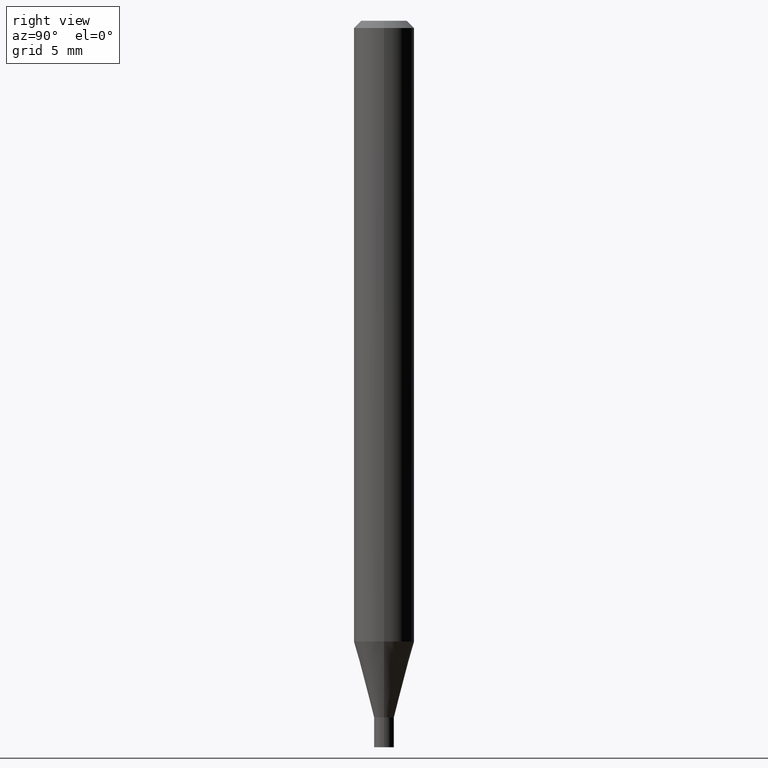
[diagram: clean part render]
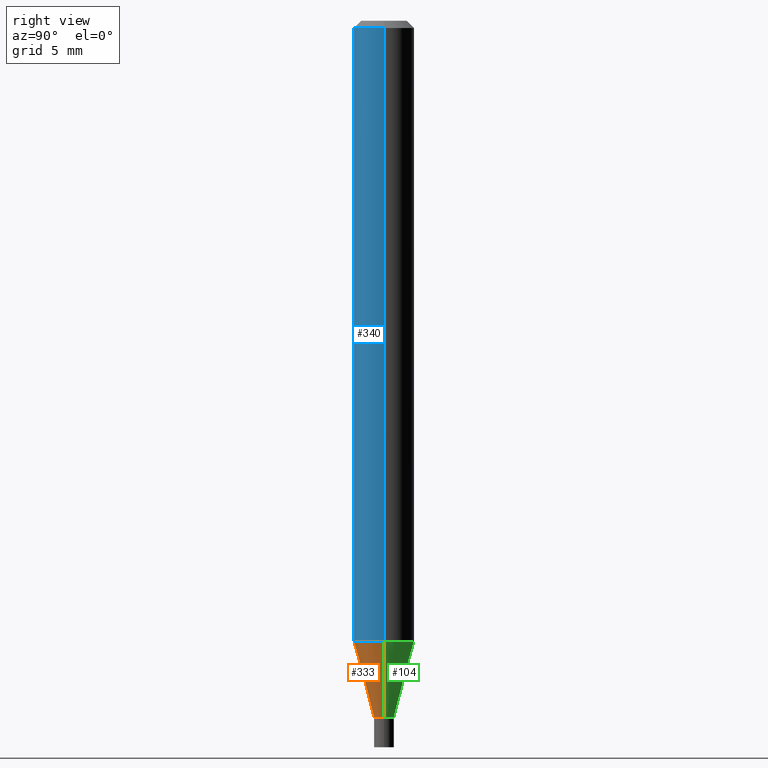
[diagram: same view with three faces highlighted in distinct colors, each labeled with its STEP entity id]
A machine part, right view with three faces highlighted in distinct colors.
Their STEP definitions:

[orange] entity #333 — the highlighted conical surface has half-angle 15 deg.
#8 = CARTESIAN_POINT ( 'NONE',  ( -0.02049999999999965045, -4.876834645095047443E-15, -1.438500000000000334 ) ) ;
#31 = CARTESIAN_POINT ( 'NONE',  ( 3.134489096710992229E-29, -4.475219704415731184E-15, -1.281753866082106397 ) ) ;
#36 = AXIS2_PLACEMENT_3D ( 'NONE', #369, #266, #300 ) ;
#45 = VERTEX_POINT ( 'NONE', #426 ) ;
#47 = LINE ( 'NONE', #8, #190 ) ;
#50 = ORIENTED_EDGE ( 'NONE', *, *, #81, .F. ) ;
#58 = VERTEX_POINT ( 'NONE', #362 ) ;
#81 = EDGE_CURVE ( 'NONE', #349, #164, #130, .T. ) ;
#82 = DIRECTION ( 'NONE',  ( -2.445468806185136597E-29, 3.491481338843145583E-15, 1.000000000000000000 ) ) ;
#84 = DIRECTION ( 'NONE',  ( 1.000000000000000000, -6.982962677686286432E-15, 0.000000000000000000 ) ) ;
#105 = VECTOR ( 'NONE', #446, 39.37007874015747433 ) ;
#128 = CARTESIAN_POINT ( 'NONE',  ( 0.06250000000000000000, -4.911654871771122854E-15, -1.281753866082106397 ) ) ;
#130 = CIRCLE ( 'NONE', #382, 0.06250000000000000000 ) ;
#132 = CARTESIAN_POINT ( 'NONE',  ( 0.02049999999999965045, -5.165646640818431797E-15, -1.438500000000000334 ) ) ;
#164 = VERTEX_POINT ( 'NONE', #128 ) ;
#171 = EDGE_LOOP ( 'NONE', ( #383, #342, #212, #50 ) ) ;
#186 = DIRECTION ( 'NONE',  ( -2.445468806185136597E-29, 3.491481338843145583E-15, 1.000000000000000000 ) ) ;
#190 = VECTOR ( 'NONE', #336, 39.37007874015747433 ) ;
#212 = ORIENTED_EDGE ( 'NONE', *, *, #305, .T. ) ;
#224 = DIRECTION ( 'NONE',  ( 1.000000000000000000, -6.982962677686262766E-15, 0.000000000000000000 ) ) ;
#263 = CARTESIAN_POINT ( 'NONE',  ( 3.517806877697320021E-29, -5.022495905925865349E-15, -1.438500000000000334 ) ) ;
#266 = DIRECTION ( 'NONE',  ( -2.445468806185136597E-29, 3.491481338843145583E-15, 1.000000000000000000 ) ) ;
#276 = CIRCLE ( 'NONE', #346, 0.02049999999999965045 ) ;
#294 = CARTESIAN_POINT ( 'NONE',  ( -0.06250000000000000000, -4.031130494565667779E-15, -1.281753866082106397 ) ) ;
#300 = DIRECTION ( 'NONE',  ( 1.000000000000000000, -6.982962677686286432E-15, 0.000000000000000000 ) ) ;
#305 = EDGE_CURVE ( 'NONE', #58, #164, #309, .T. ) ;
#309 = LINE ( 'NONE', #132, #105 ) ;
#327 = EDGE_CURVE ( 'NONE', #45, #58, #276, .T. ) ;
#328 = EDGE_CURVE ( 'NONE', #45, #349, #47, .T. ) ;
#333 = ADVANCED_FACE ( 'NONE', ( #440 ), #414, .T. ) ;
#336 = DIRECTION ( 'NONE',  ( -0.2588190451025213501, 5.211531920934551042E-15, 0.9659258262890682012 ) ) ;
#342 = ORIENTED_EDGE ( 'NONE', *, *, #327, .T. ) ;
#346 = AXIS2_PLACEMENT_3D ( 'NONE', #263, #82, #84 ) ;
#349 = VERTEX_POINT ( 'NONE', #294 ) ;
#362 = CARTESIAN_POINT ( 'NONE',  ( 0.02049999999999965045, -5.165646640818431797E-15, -1.438500000000000334 ) ) ;
#369 = CARTESIAN_POINT ( 'NONE',  ( 3.517806877697320021E-29, -5.022495905925865349E-15, -1.438500000000000334 ) ) ;
#382 = AXIS2_PLACEMENT_3D ( 'NONE', #31, #186, #224 ) ;
#383 = ORIENTED_EDGE ( 'NONE', *, *, #328, .F. ) ;
#414 = CONICAL_SURFACE ( 'NONE', #36, 0.02049999999999965045, 0.2617993877991500740 ) ;
#426 = CARTESIAN_POINT ( 'NONE',  ( -0.02049999999999965045, -4.453982569830358005E-15, -1.438500000000000334 ) ) ;
#440 = FACE_OUTER_BOUND ( 'NONE', #171, .T. ) ;
#446 = DIRECTION ( 'NONE',  ( 0.2588190451025213501, 1.565188264969621968E-15, 0.9659258262890682012 ) ) ;

[blue] entity #340 — the highlighted cylindrical surface (edge-blend (fillet) strip) has radius 1.5875 mm, axis along (-0, 0, 1).
#5 = EDGE_CURVE ( 'NONE', #164, #210, #285, .T. ) ;
#6 = DIRECTION ( 'NONE',  ( 1.000000000000000000, -6.982962677686266711E-15, 4.876176775795935793E-29 ) ) ;
#7 = CARTESIAN_POINT ( 'NONE',  ( 0.06250000000000000000, -4.888073874380388472E-16, -0.01499999999999999944 ) ) ;
#13 = CARTESIAN_POINT ( 'NONE',  ( 0.000000000000000000, 0.000000000000000000, 0.000000000000000000 ) ) ;
#14 = VECTOR ( 'NONE', #216, 39.37007874015748143 ) ;
#18 = VERTEX_POINT ( 'NONE', #46 ) ;
#20 = ORIENTED_EDGE ( 'NONE', *, *, #409, .F. ) ;
#23 = ORIENTED_EDGE ( 'NONE', *, *, #368, .F. ) ;
#31 = CARTESIAN_POINT ( 'NONE',  ( 3.134489096710992229E-29, -4.475219704415731184E-15, -1.281753866082106397 ) ) ;
#42 = CYLINDRICAL_SURFACE ( 'NONE', #136, 0.06250000000000000000 ) ;
#46 = CARTESIAN_POINT ( 'NONE',  ( -0.06250000000000000000, -1.819706752399126713E-15, -0.01499999999999999944 ) ) ;
#81 = EDGE_CURVE ( 'NONE', #349, #164, #130, .T. ) ;
#87 = DIRECTION ( 'NONE',  ( -2.445468806185136597E-29, 3.491481338843145583E-15, 1.000000000000000000 ) ) ;
#128 = CARTESIAN_POINT ( 'NONE',  ( 0.06250000000000000000, -4.911654871771122854E-15, -1.281753866082106397 ) ) ;
#130 = CIRCLE ( 'NONE', #382, 0.06250000000000000000 ) ;
#136 = AXIS2_PLACEMENT_3D ( 'NONE', #13, #87, #6 ) ;
#146 = ORIENTED_EDGE ( 'NONE', *, *, #5, .T. ) ;
#164 = VERTEX_POINT ( 'NONE', #128 ) ;
#184 = CARTESIAN_POINT ( 'NONE',  ( -0.06250000000000000000, 4.440892098500626162E-16, -3.074334431409316114E-30 ) ) ;
#186 = DIRECTION ( 'NONE',  ( -2.445468806185136597E-29, 3.491481338843145583E-15, 1.000000000000000000 ) ) ;
#196 = CIRCLE ( 'NONE', #209, 0.06250000000000000000 ) ;
#209 = AXIS2_PLACEMENT_3D ( 'NONE', #429, #435, #352 ) ;
#210 = VERTEX_POINT ( 'NONE', #7 ) ;
#216 = DIRECTION ( 'NONE',  ( -2.445468806185136877E-29, 3.491481338843145188E-15, 1.000000000000000000 ) ) ;
#222 = LINE ( 'NONE', #184, #14 ) ;
#224 = DIRECTION ( 'NONE',  ( 1.000000000000000000, -6.982962677686262766E-15, 0.000000000000000000 ) ) ;
#230 = EDGE_LOOP ( 'NONE', ( #20, #351, #146, #23 ) ) ;
#285 = LINE ( 'NONE', #392, #330 ) ;
#294 = CARTESIAN_POINT ( 'NONE',  ( -0.06250000000000000000, -4.031130494565667779E-15, -1.281753866082106397 ) ) ;
#330 = VECTOR ( 'NONE', #427, 39.37007874015748143 ) ;
#340 = ADVANCED_FACE ( 'NONE', ( #403 ), #42, .T. ) ;
#349 = VERTEX_POINT ( 'NONE', #294 ) ;
#351 = ORIENTED_EDGE ( 'NONE', *, *, #81, .T. ) ;
#352 = DIRECTION ( 'NONE',  ( 1.000000000000000000, -6.982962677686266711E-15, 0.000000000000000000 ) ) ;
#368 = EDGE_CURVE ( 'NONE', #18, #210, #196, .T. ) ;
#382 = AXIS2_PLACEMENT_3D ( 'NONE', #31, #186, #224 ) ;
#392 = CARTESIAN_POINT ( 'NONE',  ( 0.06250000000000000000, -4.364351673553916694E-16, 3.047610484872459871E-30 ) ) ;
#403 = FACE_OUTER_BOUND ( 'NONE', #230, .T. ) ;
#409 = EDGE_CURVE ( 'NONE', #349, #18, #222, .T. ) ;
#427 = DIRECTION ( 'NONE',  ( -2.445468806185136877E-29, 3.491481338843145188E-15, 1.000000000000000000 ) ) ;
#429 = CARTESIAN_POINT ( 'NONE',  ( 3.668203209277705088E-31, -5.237222008264718399E-17, -0.01499999999999999944 ) ) ;
#435 = DIRECTION ( 'NONE',  ( -2.445468806185136597E-29, 3.491481338843145583E-15, 1.000000000000000000 ) ) ;

[green] entity #104 — the highlighted conical surface has half-angle 15 deg.
#8 = CARTESIAN_POINT ( 'NONE',  ( -0.02049999999999965045, -4.876834645095047443E-15, -1.438500000000000334 ) ) ;
#34 = CARTESIAN_POINT ( 'NONE',  ( 3.517806877697320021E-29, -5.022495905925865349E-15, -1.438500000000000334 ) ) ;
#45 = VERTEX_POINT ( 'NONE', #426 ) ;
#47 = LINE ( 'NONE', #8, #190 ) ;
#48 = AXIS2_PLACEMENT_3D ( 'NONE', #83, #261, #194 ) ;
#51 = DIRECTION ( 'NONE',  ( 1.000000000000000000, -6.982962677686286432E-15, 0.000000000000000000 ) ) ;
#53 = EDGE_LOOP ( 'NONE', ( #63, #423, #56, #275 ) ) ;
#56 = ORIENTED_EDGE ( 'NONE', *, *, #154, .F. ) ;
#58 = VERTEX_POINT ( 'NONE', #362 ) ;
#63 = ORIENTED_EDGE ( 'NONE', *, *, #315, .T. ) ;
#83 = CARTESIAN_POINT ( 'NONE',  ( 3.134489096710992229E-29, -4.475219704415731184E-15, -1.281753866082106397 ) ) ;
#88 = AXIS2_PLACEMENT_3D ( 'NONE', #410, #274, #51 ) ;
#104 = ADVANCED_FACE ( 'NONE', ( #162 ), #182, .T. ) ;
#105 = VECTOR ( 'NONE', #446, 39.37007874015747433 ) ;
#128 = CARTESIAN_POINT ( 'NONE',  ( 0.06250000000000000000, -4.911654871771122854E-15, -1.281753866082106397 ) ) ;
#132 = CARTESIAN_POINT ( 'NONE',  ( 0.02049999999999965045, -5.165646640818431797E-15, -1.438500000000000334 ) ) ;
#154 = EDGE_CURVE ( 'NONE', #164, #349, #431, .T. ) ;
#162 = FACE_OUTER_BOUND ( 'NONE', #53, .T. ) ;
#164 = VERTEX_POINT ( 'NONE', #128 ) ;
#182 = CONICAL_SURFACE ( 'NONE', #374, 0.02049999999999965045, 0.2617993877991500740 ) ;
#190 = VECTOR ( 'NONE', #336, 39.37007874015747433 ) ;
#194 = DIRECTION ( 'NONE',  ( 1.000000000000000000, -6.982962677686262766E-15, 0.000000000000000000 ) ) ;
#261 = DIRECTION ( 'NONE',  ( -2.445468806185136597E-29, 3.491481338843145583E-15, 1.000000000000000000 ) ) ;
#274 = DIRECTION ( 'NONE',  ( -2.445468806185136597E-29, 3.491481338843145583E-15, 1.000000000000000000 ) ) ;
#275 = ORIENTED_EDGE ( 'NONE', *, *, #305, .F. ) ;
#292 = DIRECTION ( 'NONE',  ( 1.000000000000000000, -6.982962677686286432E-15, 0.000000000000000000 ) ) ;
#294 = CARTESIAN_POINT ( 'NONE',  ( -0.06250000000000000000, -4.031130494565667779E-15, -1.281753866082106397 ) ) ;
#305 = EDGE_CURVE ( 'NONE', #58, #164, #309, .T. ) ;
#309 = LINE ( 'NONE', #132, #105 ) ;
#315 = EDGE_CURVE ( 'NONE', #58, #45, #406, .T. ) ;
#328 = EDGE_CURVE ( 'NONE', #45, #349, #47, .T. ) ;
#336 = DIRECTION ( 'NONE',  ( -0.2588190451025213501, 5.211531920934551042E-15, 0.9659258262890682012 ) ) ;
#349 = VERTEX_POINT ( 'NONE', #294 ) ;
#362 = CARTESIAN_POINT ( 'NONE',  ( 0.02049999999999965045, -5.165646640818431797E-15, -1.438500000000000334 ) ) ;
#374 = AXIS2_PLACEMENT_3D ( 'NONE', #34, #439, #292 ) ;
#406 = CIRCLE ( 'NONE', #88, 0.02049999999999965045 ) ;
#410 = CARTESIAN_POINT ( 'NONE',  ( 3.517806877697320021E-29, -5.022495905925865349E-15, -1.438500000000000334 ) ) ;
#423 = ORIENTED_EDGE ( 'NONE', *, *, #328, .T. ) ;
#426 = CARTESIAN_POINT ( 'NONE',  ( -0.02049999999999965045, -4.453982569830358005E-15, -1.438500000000000334 ) ) ;
#431 = CIRCLE ( 'NONE', #48, 0.06250000000000000000 ) ;
#439 = DIRECTION ( 'NONE',  ( -2.445468806185136597E-29, 3.491481338843145583E-15, 1.000000000000000000 ) ) ;
#446 = DIRECTION ( 'NONE',  ( 0.2588190451025213501, 1.565188264969621968E-15, 0.9659258262890682012 ) ) ;